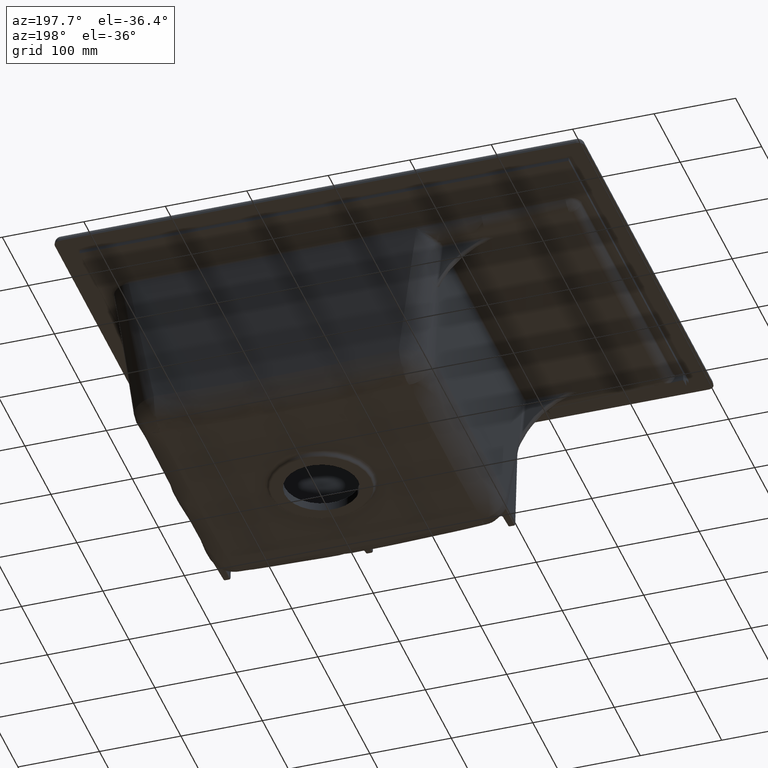
[diagram: clean part render]
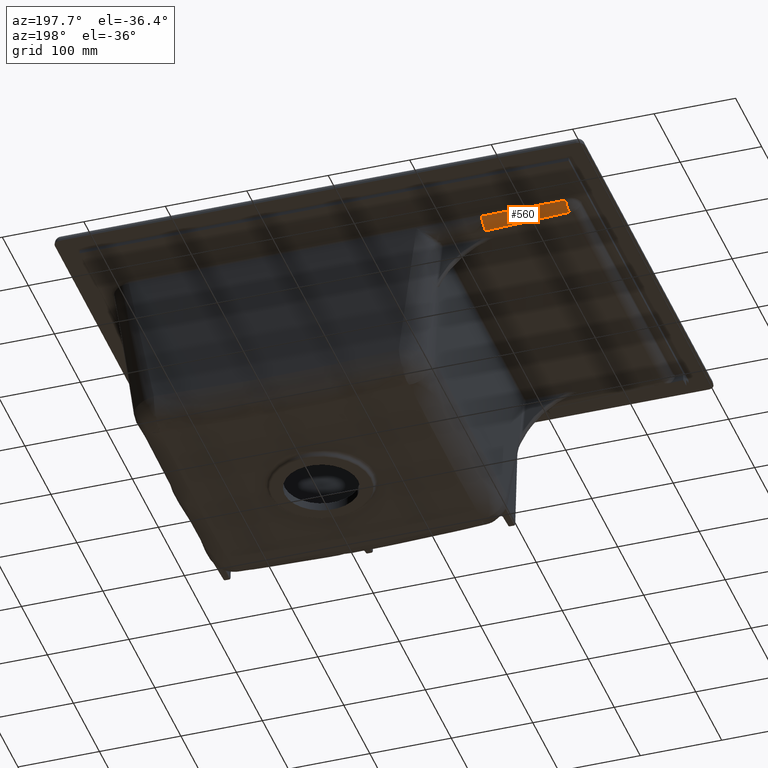
[diagram: same view with one face highlighted and labeled with its STEP entity id]
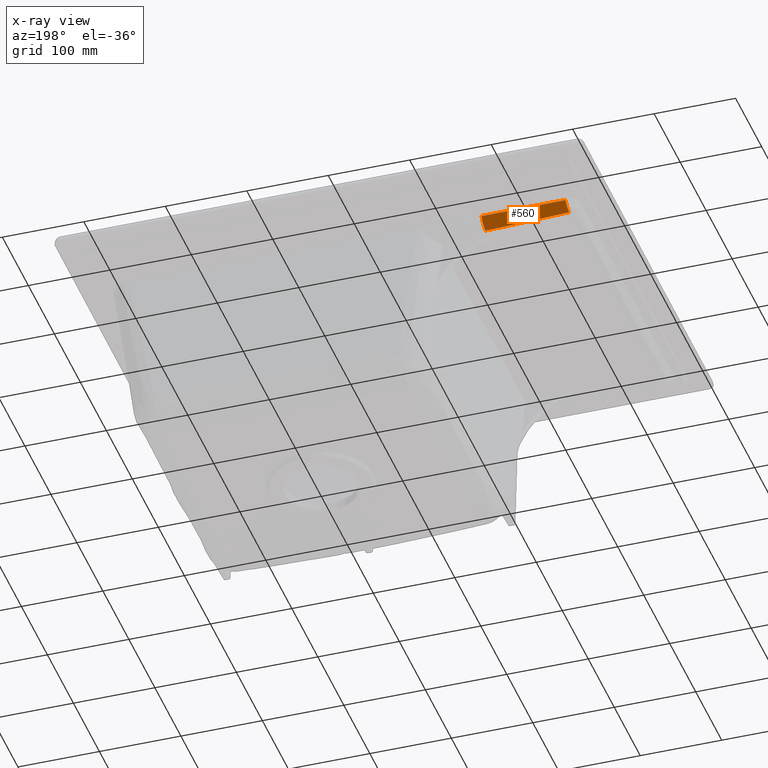
[diagram: x-ray of the same camera — body ghosted, the highlighted face saturated]
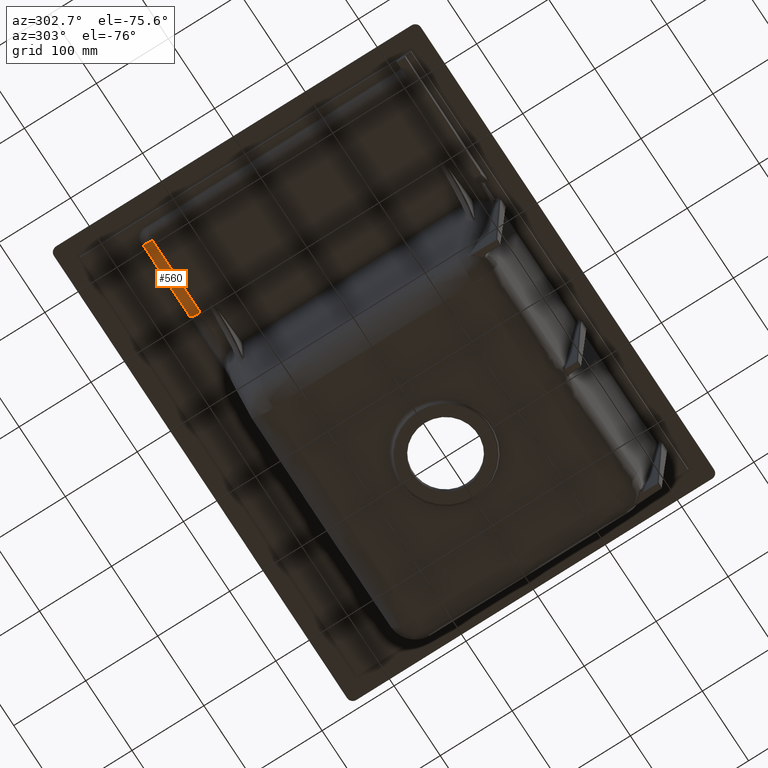
[diagram: same view with one face highlighted and labeled with its STEP entity id]
A machine part, auxiliary view. The second image highlights one B-rep face of the part: STEP entity #560.
The next image is the same camera in x-ray: the body ghosted, the highlighted face saturated — about 0% of this face is hidden behind the body in this view.
A second angle (auxiliary view) of the same face is appended — the face is thin or edge-on in the first view.
In plain terms, the highlighted face is a freeform B-spline surface patch.
Its self-contained STEP definition (entity closure, byte-faithful):
#195=CIRCLE('',#3982,15.0000000000011);
#196=CIRCLE('',#3983,15.0000000000001);
#361=(
BOUNDED_SURFACE()
B_SPLINE_SURFACE(3,2,((#14549,#14550,#14551),(#14552,#14553,#14554),(#14555,
#14556,#14557),(#14558,#14559,#14560)),.UNSPECIFIED.,.F.,.F.,.F.)
B_SPLINE_SURFACE_WITH_KNOTS((4,4),(3,3),(0.,1.),(0.,1.),.UNSPECIFIED.)
GEOMETRIC_REPRESENTATION_ITEM()
RATIONAL_B_SPLINE_SURFACE(((1.,0.768369663352751,0.95450310883093),(1.,
0.791292995803337,0.959005715772805),(1.,0.813054077357295,0.96328003309027),
(1.,0.833937419462806,0.967381944596222)))
REPRESENTATION_ITEM('')
SURFACE()
);
#560=ADVANCED_FACE('',(#848),#361,.T.);
#848=FACE_OUTER_BOUND('',#1117,.T.);
#1117=EDGE_LOOP('',(#2146,#2147,#2148,#2149));
#1522=B_SPLINE_CURVE_WITH_KNOTS('',3,(#9758,#9759,#9760,#9761),
 .UNSPECIFIED.,.F.,.F.,(4,4),(0.,1.),.UNSPECIFIED.);
#1571=B_SPLINE_CURVE_WITH_KNOTS('',3,(#14545,#14546,#14547,#14548),
 .UNSPECIFIED.,.F.,.F.,(4,4),(0.,1.),.UNSPECIFIED.);
#2146=ORIENTED_EDGE('',*,*,#3541,.T.);
#2147=ORIENTED_EDGE('',*,*,#3546,.T.);
#2148=ORIENTED_EDGE('',*,*,#3545,.T.);
#2149=ORIENTED_EDGE('',*,*,#3485,.F.);
#3097=VERTEX_POINT('',#9658);
#3114=VERTEX_POINT('',#9757);
#3134=VERTEX_POINT('',#14430);
#3135=VERTEX_POINT('',#14472);
#3485=EDGE_CURVE('',#3114,#3097,#1522,.T.);
#3541=EDGE_CURVE('',#3114,#3134,#195,.T.);
#3545=EDGE_CURVE('',#3135,#3097,#196,.T.);
#3546=EDGE_CURVE('',#3134,#3135,#1571,.T.);
#3982=AXIS2_PLACEMENT_3D('',#14431,#4411,#4412);
#3983=AXIS2_PLACEMENT_3D('',#14532,#4413,#4414);
#4411=DIRECTION('',(0.999418130269612,-0.00837047260537337,-0.0330656328648807));
#4412=DIRECTION('',(-0.0330667912944239,0.,-0.999453144131075));
#4413=DIRECTION('',(-0.999451465822612,0.00183260762173527,0.0330667357677754));
#4414=DIRECTION('',(0.0330667912944151,0.,0.999453144131074));
#9658=CARTESIAN_POINT('',(-257.716266056119,175.532219853151,192.03612978747));
#9757=CARTESIAN_POINT('',(-360.534216782316,176.046038590732,195.437849755981));
#9758=CARTESIAN_POINT('',(-360.534216782317,176.046038590742,195.437849755981));
#9759=CARTESIAN_POINT('',(-327.383940360261,175.768393556849,194.341076707403));
#9760=CARTESIAN_POINT('',(-293.111290118195,175.597120644319,193.207170051232));
#9761=CARTESIAN_POINT('',(-257.716266056119,175.532219853151,192.03612978747));
#14430=CARTESIAN_POINT('',(-360.145302332124,189.49522832521,203.788274486666));
#14431=CARTESIAN_POINT('',(-360.038214912581,176.046038590705,210.429646917938));
#14472=CARTESIAN_POINT('',(-257.319602107935,190.040833995456,203.221321158569));
#14532=CARTESIAN_POINT('',(-257.220264187237,175.532219853125,207.027926949454));
#14545=CARTESIAN_POINT('',(-360.145302332123,189.495228325185,203.788274486689));
#14546=CARTESIAN_POINT('',(-323.66645051315,189.686362254403,203.587138473992));
#14547=CARTESIAN_POINT('',(-289.390599142391,189.867643493831,203.398152411786));
#14548=CARTESIAN_POINT('',(-257.319602107948,190.040833995438,203.221321158598));
#14549=CARTESIAN_POINT('',(-257.716266056119,175.532219853123,192.03612978747));
#14550=CARTESIAN_POINT('',(-257.69469010364,187.312003678588,192.035415949585));
#14551=CARTESIAN_POINT('',(-257.311158755207,190.10459652949,203.47299007524));
#14552=CARTESIAN_POINT('',(-291.989376458239,175.595063217069,193.170051667982));
#14553=CARTESIAN_POINT('',(-290.953466634528,186.54903000231,193.135778711823));
#14554=CARTESIAN_POINT('',(-291.428256032531,189.919414473108,203.586221007645));
#14555=CARTESIAN_POINT('',(-326.262252415712,175.758999587558,194.303965791921));
#14556=CARTESIAN_POINT('',(-325.320457084981,185.915520594322,194.272806605312));
#14557=CARTESIAN_POINT('',(-325.720823258738,189.72708773882,203.717001743861));
#14558=CARTESIAN_POINT('',(-360.534216782318,176.046038590708,195.437849755981));
#14559=CARTESIAN_POINT('',(-360.455747616378,185.425359679061,195.435253612732));
#14560=CARTESIAN_POINT('',(-360.142542202991,189.531640793427,203.862482457804));